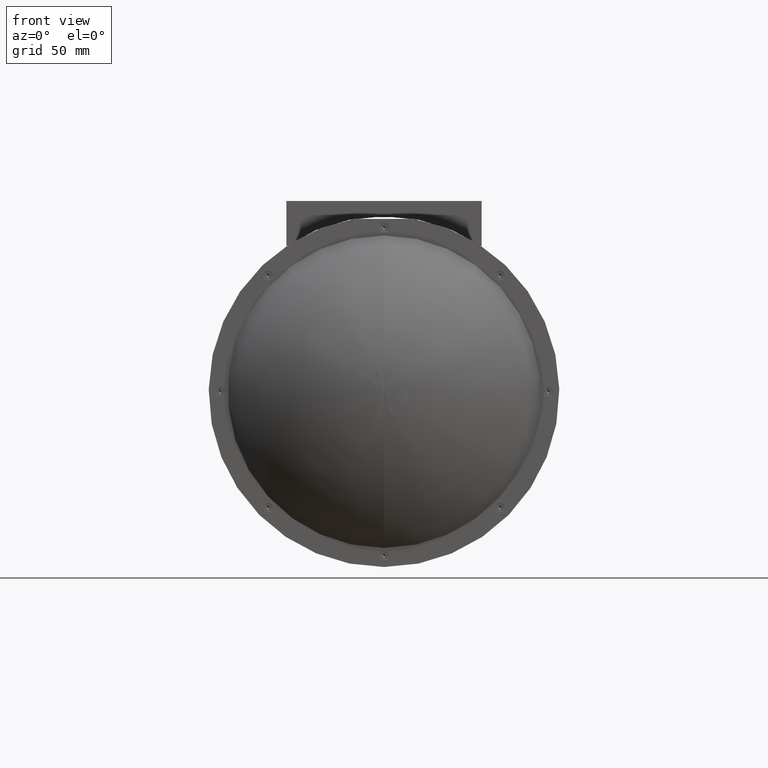
[diagram: clean part render]
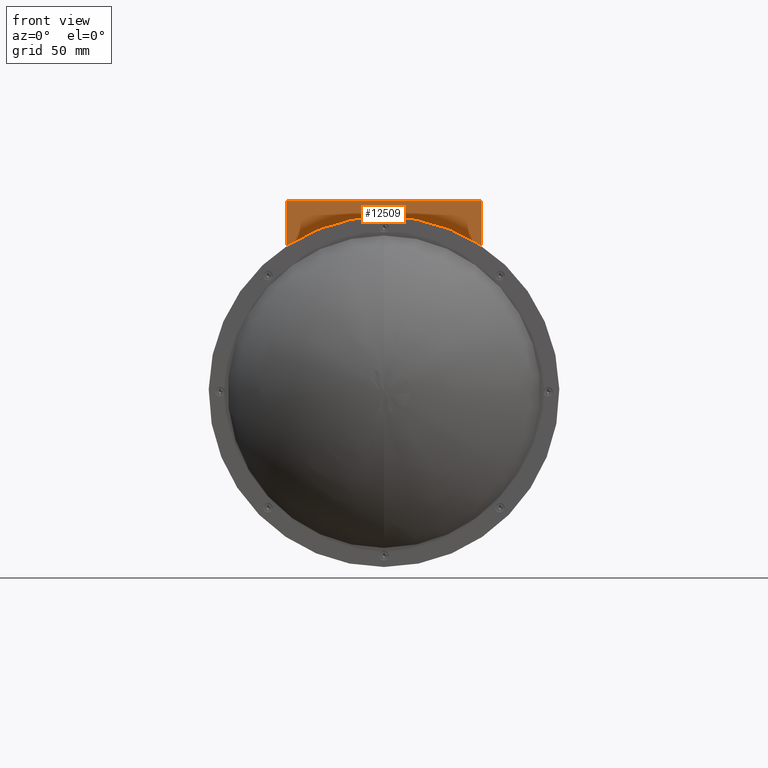
[diagram: same view with one face highlighted and labeled with its STEP entity id]
A machine part, front view. The second image highlights one B-rep face of the part: STEP entity #12509.
In plain terms, the highlighted planar face has unit normal (-0, 1, 0).
Its self-contained STEP definition (entity closure, byte-faithful):
#1125 = ORIENTED_EDGE ( 'NONE', *, *, #12512, .F. ) ;
#1200 = ORIENTED_EDGE ( 'NONE', *, *, #6446, .F. ) ;
#5890 = VERTEX_POINT ( 'NONE', #16146 ) ;
#6189 = EDGE_LOOP ( 'NONE', ( #1200, #17897, #1125, #28839 ) ) ;
#6446 = EDGE_CURVE ( 'NONE', #29479, #30319, #25434, .T. ) ;
#10508 = DIRECTION ( 'NONE',  ( -6.245004513516495679E-17, 1.000000000000000000, 1.803158653138880199E-16 ) ) ;
#11354 = DIRECTION ( 'NONE',  ( -1.247238774109135192E-16, -1.602807691679004676E-16, -1.000000000000000000 ) ) ;
#12509 = ADVANCED_FACE ( 'NONE', ( #29549 ), #30871, .F. ) ;
#12512 = EDGE_CURVE ( 'NONE', #42439, #5890, #20805, .T. ) ;
#13460 = VECTOR ( 'NONE', #11354, 39.37007874015748143 ) ;
#15721 = VECTOR ( 'NONE', #24378, 39.37007874015748143 ) ;
#16144 = EDGE_CURVE ( 'NONE', #5890, #29479, #27158, .T. ) ;
#16146 = CARTESIAN_POINT ( 'NONE',  ( -3.520761672972044565, -0.9056228446258178799, 4.605178668100231576 ) ) ;
#17011 = DIRECTION ( 'NONE',  ( 1.000000000000000000, 6.245004513516493214E-17, 1.108240629956715201E-16 ) ) ;
#17444 = CARTESIAN_POINT ( 'NONE',  ( -1.570761672972035949, -0.9056228446258189901, 0.7987203422335082958 ) ) ;
#17893 = CARTESIAN_POINT ( 'NONE',  ( -3.520761672972044565, -0.9056228446258178799, 4.605178668100231576 ) ) ;
#17897 = ORIENTED_EDGE ( 'NONE', *, *, #16144, .F. ) ;
#18292 = CARTESIAN_POINT ( 'NONE',  ( 0.3792383270279712781, -0.9056228446258178799, 4.605178668100231576 ) ) ;
#18972 = CARTESIAN_POINT ( 'NONE',  ( -3.520761672972044565, -0.9056228446258178799, 3.705178668100232109 ) ) ;
#19857 = VECTOR ( 'NONE', #33840, 39.37007874015748143 ) ;
#20208 = CARTESIAN_POINT ( 'NONE',  ( -1.570761672972035727, -0.9056228446258178799, 4.605178668100231576 ) ) ;
#20805 = LINE ( 'NONE', #17893, #15721 ) ;
#22842 = EDGE_CURVE ( 'NONE', #30319, #42439, #35655, .T. ) ;
#23656 = CARTESIAN_POINT ( 'NONE',  ( 0.3792383270279696683, -0.9056228446258178799, 3.705178668100232553 ) ) ;
#24378 = DIRECTION ( 'NONE',  ( 1.247238774109135192E-16, 1.602807691679004676E-16, 1.000000000000000000 ) ) ;
#25123 = DIRECTION ( 'NONE',  ( 1.000000000000000000, 7.805279981897867793E-17, 1.170791997284680046E-16 ) ) ;
#25434 = LINE ( 'NONE', #18292, #13460 ) ;
#27158 = LINE ( 'NONE', #20208, #19857 ) ;
#28496 = CARTESIAN_POINT ( 'NONE',  ( -1.570761672972035949, -0.9056228446258189901, 0.7987203422335082958 ) ) ;
#28839 = ORIENTED_EDGE ( 'NONE', *, *, #22842, .F. ) ;
#28930 = DIRECTION ( 'NONE',  ( -5.551115123125793795E-17, -1.000000000000000000, -1.803158653138880199E-16 ) ) ;
#29479 = VERTEX_POINT ( 'NONE', #42585 ) ;
#29549 = FACE_OUTER_BOUND ( 'NONE', #6189, .T. ) ;
#30319 = VERTEX_POINT ( 'NONE', #23656 ) ;
#30871 = PLANE ( 'NONE',  #41444 ) ;
#33840 = DIRECTION ( 'NONE',  ( 1.000000000000000000, 6.245004513516491981E-17, 2.290070305688752114E-17 ) ) ;
#35655 = CIRCLE ( 'NONE', #44213, 3.500000000000012434 ) ;
#41444 = AXIS2_PLACEMENT_3D ( 'NONE', #17444, #10508, #17011 ) ;
#42439 = VERTEX_POINT ( 'NONE', #18972 ) ;
#42585 = CARTESIAN_POINT ( 'NONE',  ( 0.3792383270279712781, -0.9056228446258178799, 4.605178668100231576 ) ) ;
#44213 = AXIS2_PLACEMENT_3D ( 'NONE', #28496, #28930, #25123 ) ;